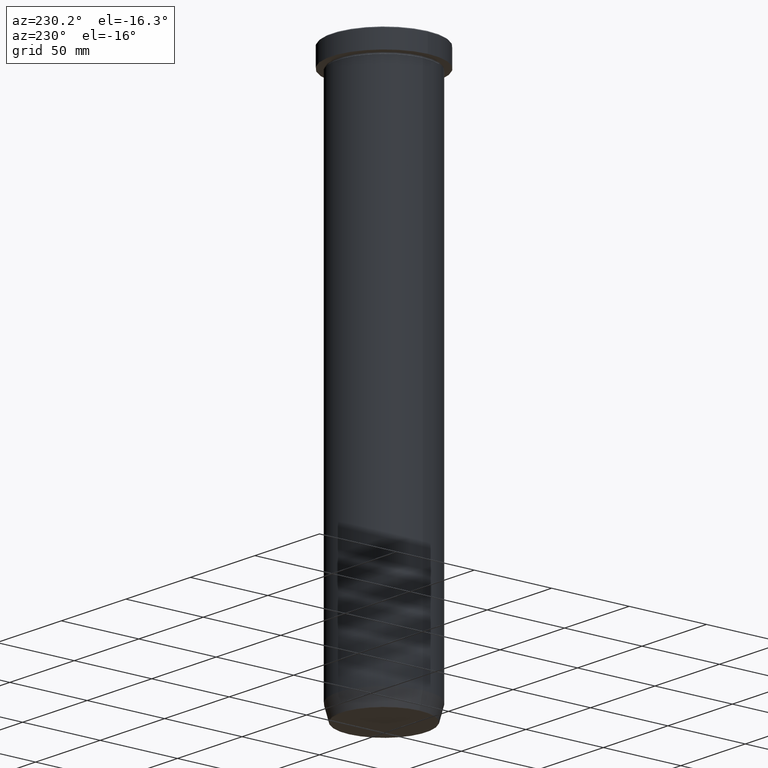
[diagram: clean part render]
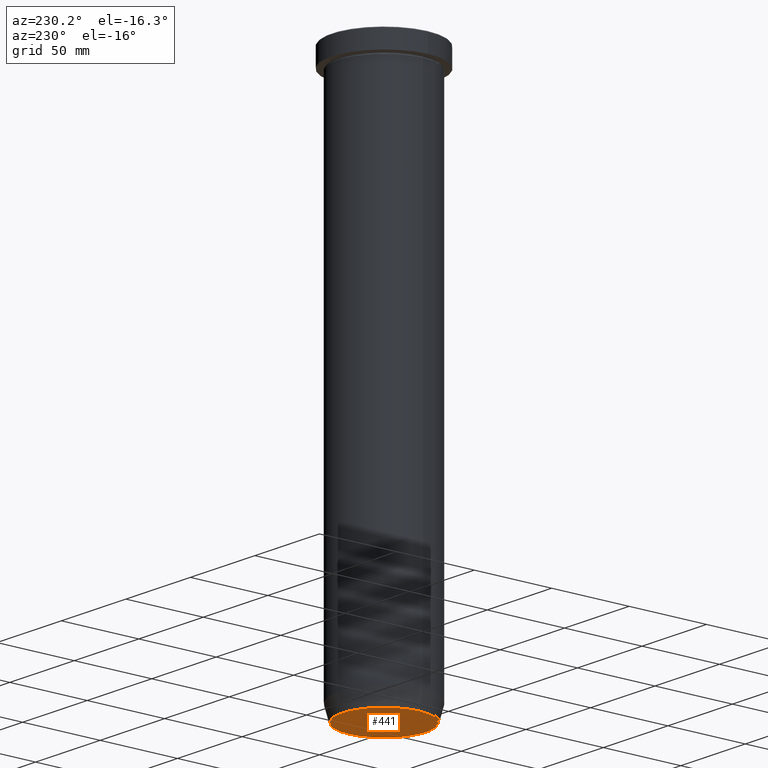
[diagram: same view with one face highlighted and labeled with its STEP entity id]
A machine part, auxiliary view. The second image highlights one B-rep face of the part: STEP entity #441.
In plain terms, the highlighted planar face has unit normal (0, -0, 1).
Its self-contained STEP definition (entity closure, byte-faithful):
#46 = CIRCLE ( 'NONE', #108, 26.93684458169928320 ) ;
#49 = DIRECTION ( 'NONE',  ( 0.000000000000000000, 0.000000000000000000, -1.000000000000000000 ) ) ;
#58 = DIRECTION ( 'NONE',  ( 1.000000000000000000, 0.000000000000000000, 0.000000000000000000 ) ) ;
#86 = CARTESIAN_POINT ( 'NONE',  ( 0.000000000000000000, 0.000000000000000000, -350.0000000000000568 ) ) ;
#103 = PLANE ( 'NONE',  #589 ) ;
#108 = AXIS2_PLACEMENT_3D ( 'NONE', #86, #191, #231 ) ;
#159 = CARTESIAN_POINT ( 'NONE',  ( 0.000000000000000000, 3.673940397442060124E-14, -350.0000000000000568 ) ) ;
#191 = DIRECTION ( 'NONE',  ( 0.000000000000000000, 0.000000000000000000, -1.000000000000000000 ) ) ;
#223 = CARTESIAN_POINT ( 'NONE',  ( 0.000000000000000000, 0.000000000000000000, -350.0000000000000568 ) ) ;
#231 = DIRECTION ( 'NONE',  ( 1.000000000000000000, 0.000000000000000000, 0.000000000000000000 ) ) ;
#269 = DIRECTION ( 'NONE',  ( 1.000000000000000000, 0.000000000000000000, 0.000000000000000000 ) ) ;
#278 = EDGE_CURVE ( 'NONE', #477, #563, #368, .T. ) ;
#289 = DIRECTION ( 'NONE',  ( 0.000000000000000000, -0.000000000000000000, 1.000000000000000000 ) ) ;
#297 = ORIENTED_EDGE ( 'NONE', *, *, #278, .T. ) ;
#312 = EDGE_CURVE ( 'NONE', #563, #477, #46, .T. ) ;
#347 = AXIS2_PLACEMENT_3D ( 'NONE', #223, #49, #269 ) ;
#368 = CIRCLE ( 'NONE', #347, 26.93684458169928320 ) ;
#421 = FACE_OUTER_BOUND ( 'NONE', #424, .T. ) ;
#424 = EDGE_LOOP ( 'NONE', ( #496, #297 ) ) ;
#440 = CARTESIAN_POINT ( 'NONE',  ( 26.93684458169928320, 0.000000000000000000, -350.0000000000000568 ) ) ;
#441 = ADVANCED_FACE ( 'NONE', ( #421 ), #103, .F. ) ;
#477 = VERTEX_POINT ( 'NONE', #528 ) ;
#496 = ORIENTED_EDGE ( 'NONE', *, *, #312, .T. ) ;
#528 = CARTESIAN_POINT ( 'NONE',  ( -26.93684458169928320, 3.328384998895242257E-15, -350.0000000000000568 ) ) ;
#563 = VERTEX_POINT ( 'NONE', #440 ) ;
#589 = AXIS2_PLACEMENT_3D ( 'NONE', #159, #289, #58 ) ;